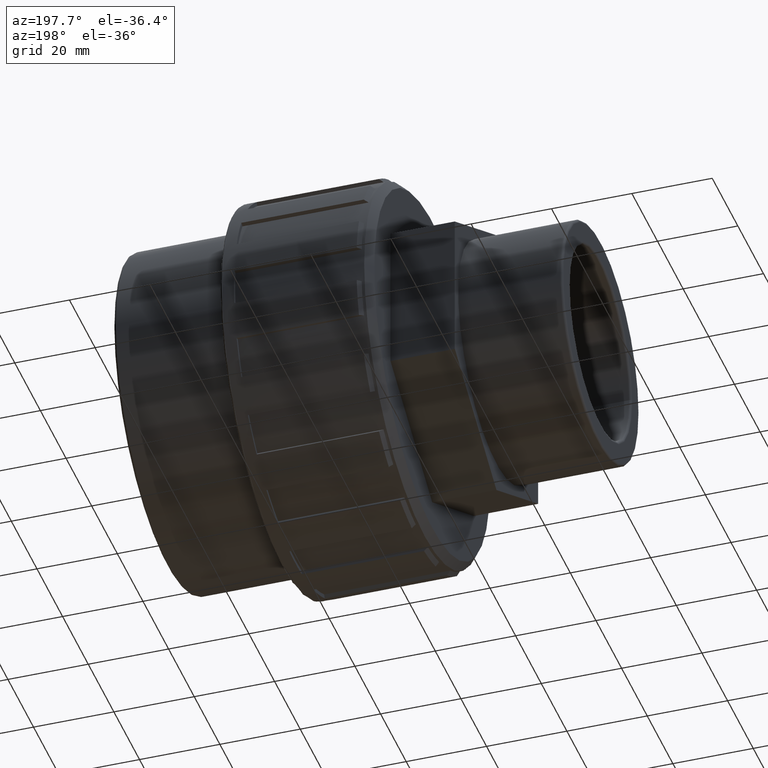
[diagram: clean part render]
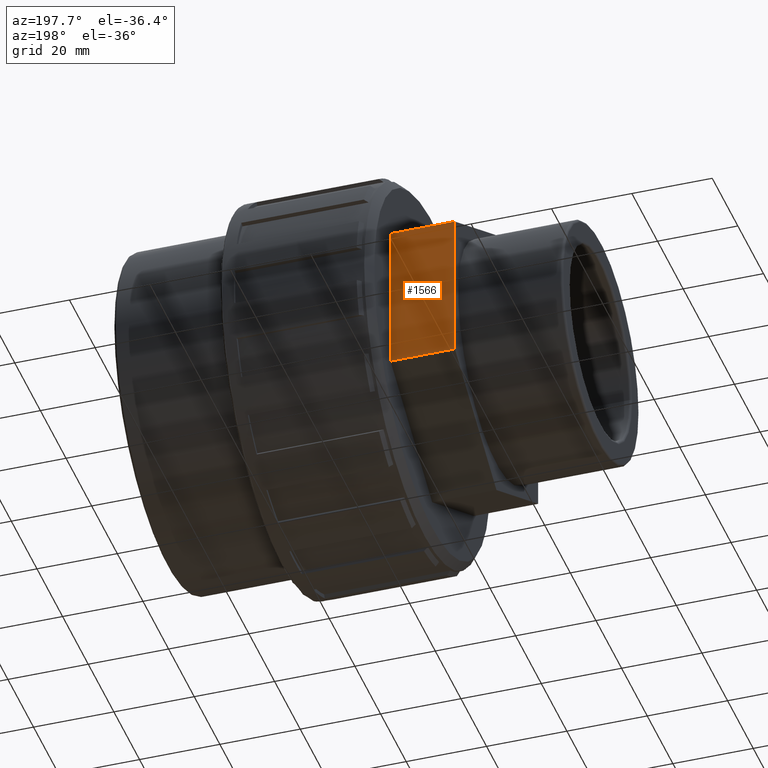
[diagram: same view with one face highlighted and labeled with its STEP entity id]
A machine part, auxiliary view. The second image highlights one B-rep face of the part: STEP entity #1566.
In plain terms, the highlighted planar face has unit normal (-0, 1, -0).
Its self-contained STEP definition (entity closure, byte-faithful):
#156=FACE_OUTER_BOUND('',#248,.T.);
#248=EDGE_LOOP('',(#1059,#1060,#1061,#1062));
#362=LINE('',#2345,#508);
#367=LINE('',#2355,#513);
#373=LINE('',#2366,#519);
#374=LINE('',#2367,#520);
#508=VECTOR('',#1842,16.);
#513=VECTOR('',#1849,16.);
#519=VECTOR('',#1861,37.5277674973257);
#520=VECTOR('',#1862,37.5277674973257);
#653=VERTEX_POINT('',#2342);
#654=VERTEX_POINT('',#2344);
#656=VERTEX_POINT('',#2349);
#658=VERTEX_POINT('',#2353);
#814=EDGE_CURVE('',#654,#653,#362,.T.);
#819=EDGE_CURVE('',#658,#656,#367,.T.);
#825=EDGE_CURVE('',#656,#653,#373,.T.);
#826=EDGE_CURVE('',#658,#654,#374,.T.);
#1059=ORIENTED_EDGE('',*,*,#825,.F.);
#1060=ORIENTED_EDGE('',*,*,#819,.F.);
#1061=ORIENTED_EDGE('',*,*,#826,.T.);
#1062=ORIENTED_EDGE('',*,*,#814,.T.);
#1504=PLANE('',#1660);
#1566=ADVANCED_FACE('',(#156),#1504,.T.);
#1660=AXIS2_PLACEMENT_3D('',#2365,#1859,#1860);
#1842=DIRECTION('',(1.,5.5511151231257E-16,0.));
#1849=DIRECTION('',(1.,5.5511151231257E-16,0.));
#1859=DIRECTION('center_axis',(-5.5511151231257E-16,1.,-1.53837014910685E-15));
#1860=DIRECTION('ref_axis',(0.,1.4210854715202E-15,1.));
#1861=DIRECTION('',(-7.53584031603016E-31,1.53837014910685E-15,1.));
#1862=DIRECTION('',(-7.53584031603016E-31,1.53837014910685E-15,1.));
#2342=CARTESIAN_POINT('',(-12.,32.5,18.7638837486628));
#2344=CARTESIAN_POINT('',(-28.,32.5,18.7638837486628));
#2345=CARTESIAN_POINT('',(-28.,32.5,18.7638837486628));
#2349=CARTESIAN_POINT('',(-12.,32.5,-18.7638837486629));
#2353=CARTESIAN_POINT('',(-28.,32.5,-18.7638837486629));
#2355=CARTESIAN_POINT('',(-28.,32.5,-18.7638837486629));
#2365=CARTESIAN_POINT('Origin',(-28.,32.5,-5.32907051820075E-14));
#2366=CARTESIAN_POINT('',(-12.,32.5,-7.66423824369764E-14));
#2367=CARTESIAN_POINT('',(-28.,32.5,-18.7638837486629));